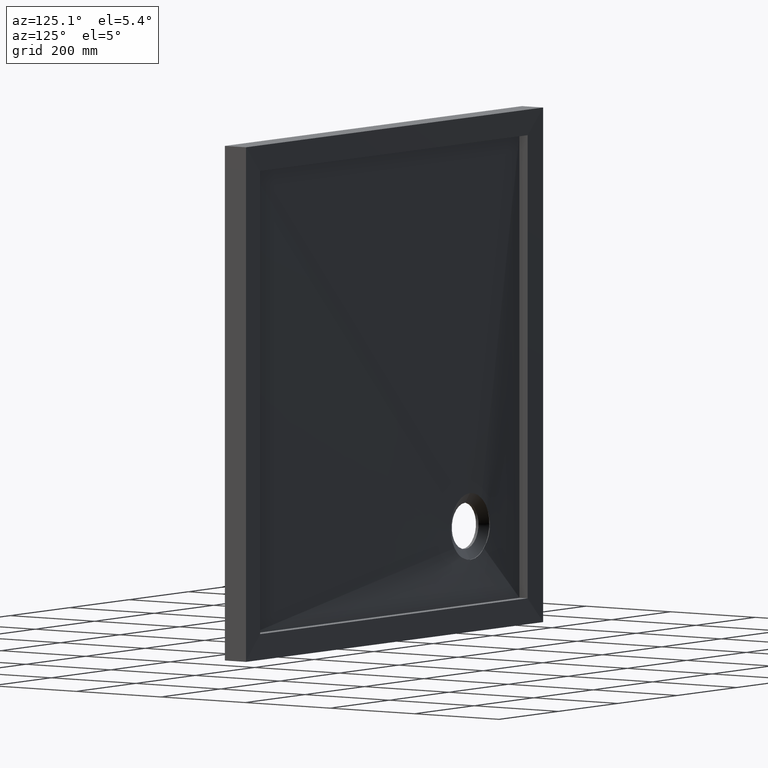
[diagram: clean part render]
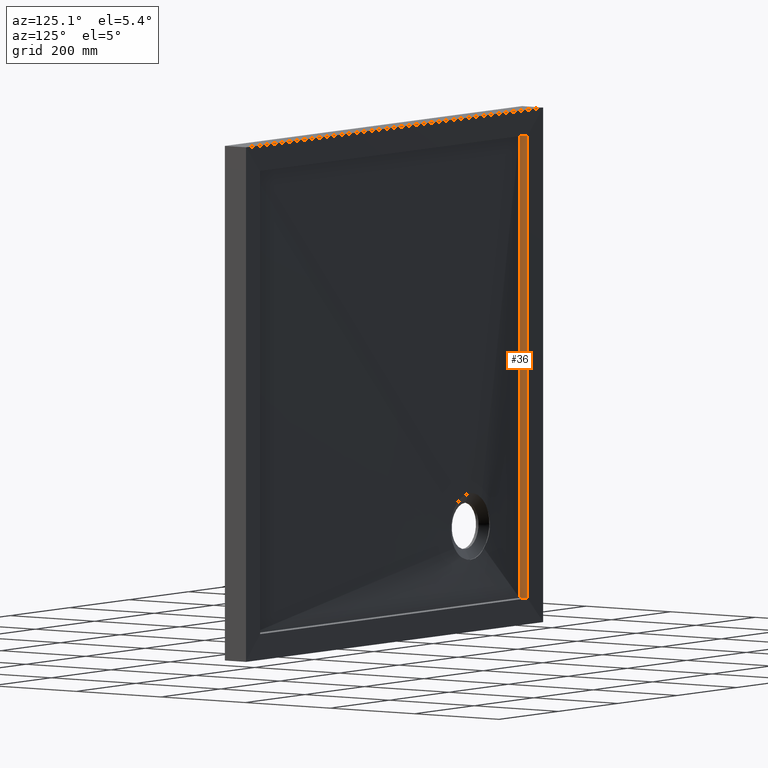
[diagram: same view with one face highlighted and labeled with its STEP entity id]
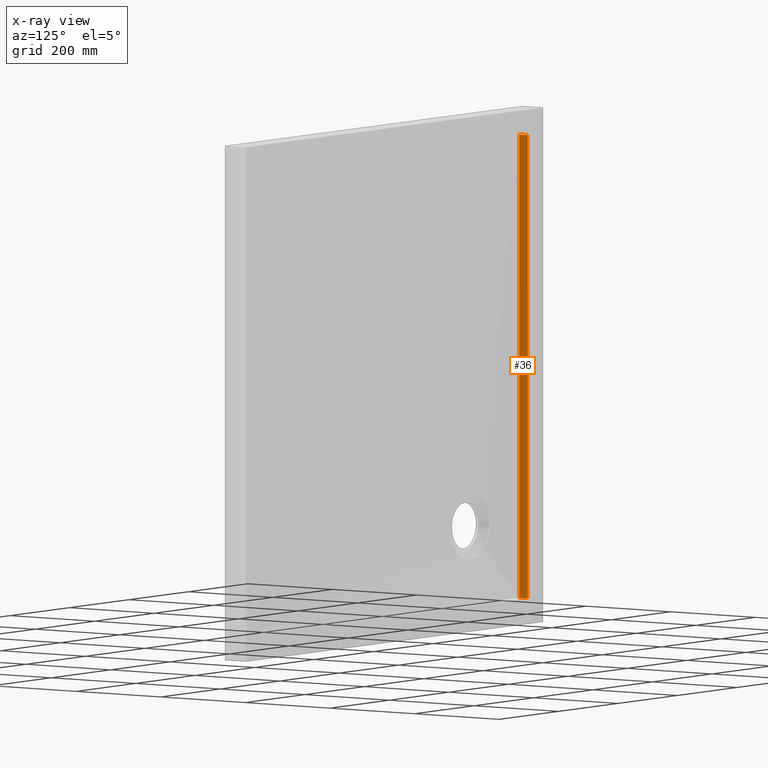
[diagram: x-ray of the same camera — body ghosted, the highlighted face saturated]
A machine part, auxiliary view. The second image highlights one B-rep face of the part: STEP entity #36.
The next image is the same camera in x-ray: the body ghosted, the highlighted face saturated — about 0% of this face is hidden behind the body in this view.
In plain terms, the highlighted planar face has unit normal (-1, 0, 0).
Its self-contained STEP definition (entity closure, byte-faithful):
#35 = CARTESIAN_POINT ( 'NONE',  ( -450.0000000000000000, 28.99999999999991500, 450.0000000000000000 ) ) ;
#36 = ADVANCED_FACE ( 'NONE', ( #921 ), #371, .F. ) ;
#37 = CARTESIAN_POINT ( 'NONE',  ( -450.0000000000001100, 48.25745360236177800, -450.0000000000000000 ) ) ;
#75 = CARTESIAN_POINT ( 'NONE',  ( -450.0000000000001100, -1272.792206135785800, -450.0000000000000000 ) ) ;
#82 = LINE ( 'NONE', #180, #822 ) ;
#83 = DIRECTION ( 'NONE',  ( 1.233581138472396500E-016, 0.0000000000000000000, 1.000000000000000000 ) ) ;
#99 = DIRECTION ( 'NONE',  ( -0.0000000000000000000, 1.000000000000000000, -0.0000000000000000000 ) ) ;
#108 = CARTESIAN_POINT ( 'NONE',  ( -450.0000000000001100, -1272.792206135785800, -450.0000000000000000 ) ) ;
#111 = LINE ( 'NONE', #75, #980 ) ;
#151 = VERTEX_POINT ( 'NONE', #502 ) ;
#157 = EDGE_CURVE ( 'NONE', #981, #298, #82, .T. ) ;
#165 = EDGE_LOOP ( 'NONE', ( #243, #454, #474, #341 ) ) ;
#171 = CARTESIAN_POINT ( 'NONE',  ( -450.0000000000000000, 48.25745360236177800, 450.0000000000000000 ) ) ;
#176 = CARTESIAN_POINT ( 'NONE',  ( -450.0000000000000000, 28.99999999999991500, 450.0000000000000000 ) ) ;
#180 = CARTESIAN_POINT ( 'NONE',  ( -450.0000000000000000, 48.25745360236189200, 450.0000000000000000 ) ) ;
#205 = B_SPLINE_CURVE_WITH_KNOTS ( 'NONE', 3,
 ( #176, #254, #275, #824 ),
 .UNSPECIFIED., .F., .F.,
 ( 4, 4 ),
 ( 0.0000000000000000000, 1.000000000000000000 ),
 .UNSPECIFIED. ) ;
#213 = VECTOR ( 'NONE', #99, 1000.000000000000000 ) ;
#243 = ORIENTED_EDGE ( 'NONE', *, *, #753, .T. ) ;
#254 = CARTESIAN_POINT ( 'NONE',  ( -450.0000000000000600, 28.99999999999947100, 150.0000000000000300 ) ) ;
#275 = CARTESIAN_POINT ( 'NONE',  ( -450.0000000000000600, 28.99999999999947100, -150.0000000000000300 ) ) ;
#298 = VERTEX_POINT ( 'NONE', #171 ) ;
#316 = DIRECTION ( 'NONE',  ( -1.000000000000000000, 0.0000000000000000000, 1.233581138472396500E-016 ) ) ;
#334 = EDGE_CURVE ( 'NONE', #556, #151, #205, .T. ) ;
#341 = ORIENTED_EDGE ( 'NONE', *, *, #334, .T. ) ;
#371 = PLANE ( 'NONE',  #724 ) ;
#454 = ORIENTED_EDGE ( 'NONE', *, *, #157, .T. ) ;
#474 = ORIENTED_EDGE ( 'NONE', *, *, #739, .F. ) ;
#502 = CARTESIAN_POINT ( 'NONE',  ( -450.0000000000001100, 29.00000000000000000, -450.0000000000000000 ) ) ;
#556 = VERTEX_POINT ( 'NONE', #35 ) ;
#558 = DIRECTION ( 'NONE',  ( 1.233581138472396500E-016, 0.0000000000000000000, 1.000000000000000000 ) ) ;
#602 = LINE ( 'NONE', #701, #213 ) ;
#701 = CARTESIAN_POINT ( 'NONE',  ( -450.0000000000000000, -1272.792206135785800, 450.0000000000000000 ) ) ;
#724 = AXIS2_PLACEMENT_3D ( 'NONE', #108, #316, #558 ) ;
#739 = EDGE_CURVE ( 'NONE', #556, #298, #602, .T. ) ;
#753 = EDGE_CURVE ( 'NONE', #151, #981, #111, .T. ) ;
#822 = VECTOR ( 'NONE', #83, 1000.000000000000000 ) ;
#824 = CARTESIAN_POINT ( 'NONE',  ( -450.0000000000001100, 29.00000000000000000, -450.0000000000000000 ) ) ;
#888 = DIRECTION ( 'NONE',  ( -0.0000000000000000000, 1.000000000000000000, -0.0000000000000000000 ) ) ;
#921 = FACE_OUTER_BOUND ( 'NONE', #165, .T. ) ;
#980 = VECTOR ( 'NONE', #888, 1000.000000000000000 ) ;
#981 = VERTEX_POINT ( 'NONE', #37 ) ;